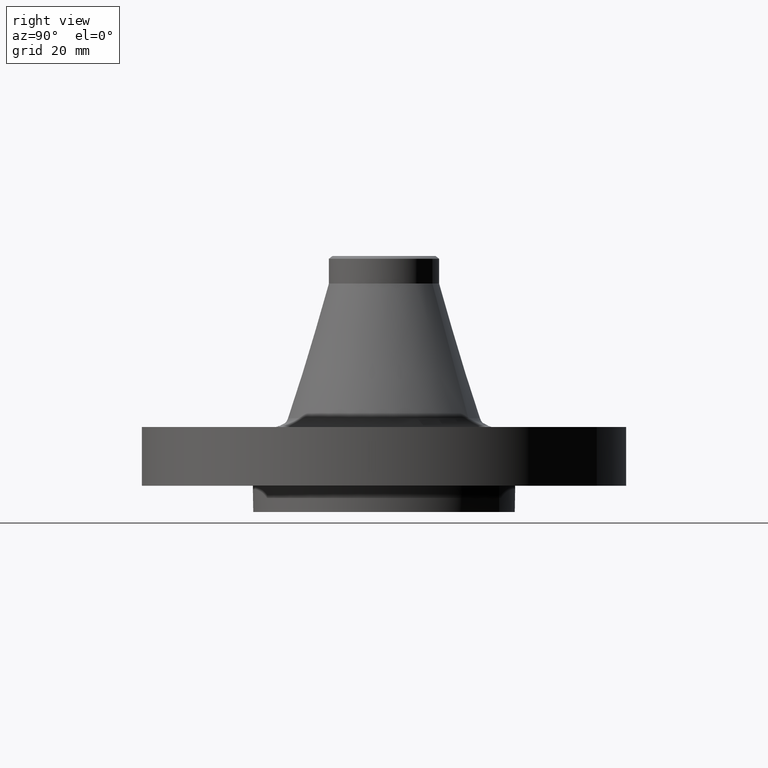
[diagram: clean part render]
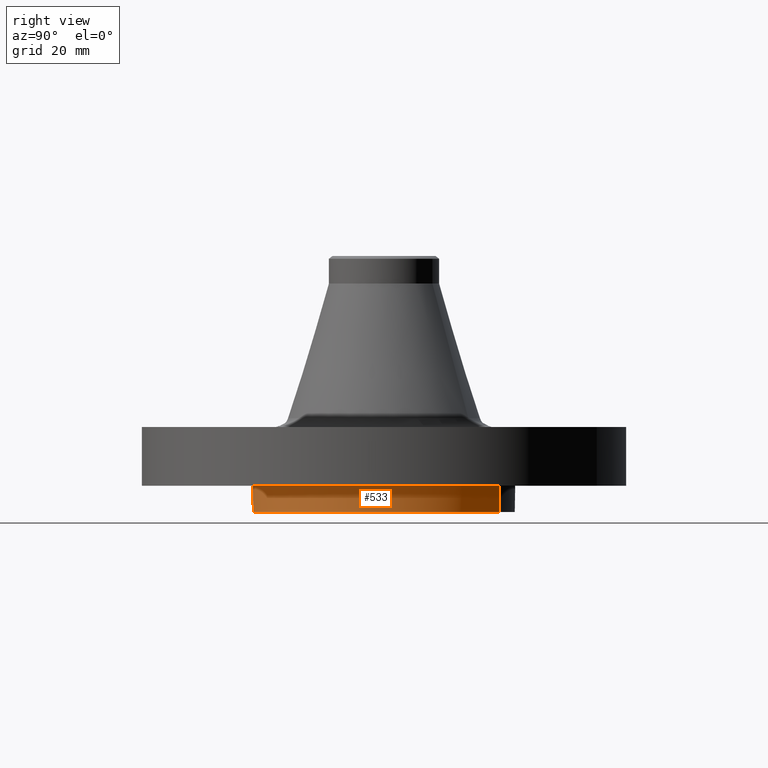
[diagram: same view with one face highlighted and labeled with its STEP entity id]
A machine part, right view. The second image highlights one B-rep face of the part: STEP entity #533.
In plain terms, the highlighted cylindrical surface (partial cylindrical patch) has radius 31.75 mm, axis along (0, 0, -1).
Its self-contained STEP definition (entity closure, byte-faithful):
#450=AXIS2_PLACEMENT_3D('Cylinder Axis2P3D',#447,#448,#449) ;
#503=AXIS2_PLACEMENT_3D('Circle Axis2P3D',#501,#502,$) ;
#508=AXIS2_PLACEMENT_3D('Circle Axis2P3D',#506,#507,$) ;
#515=AXIS2_PLACEMENT_3D('Circle Axis2P3D',#513,#514,$) ;
#522=AXIS2_PLACEMENT_3D('Circle Axis2P3D',#520,#521,$) ;
#447=CARTESIAN_POINT('Axis2P3D Location',(0.,0.,0.970000000004)) ;
#456=CARTESIAN_POINT('Vertex',(-0.599281923258,-1.09697820237,-0.250000000001)) ;
#458=CARTESIAN_POINT('Vertex',(0.599281923258,1.09697820237,-0.250000000001)) ;
#461=CARTESIAN_POINT('Line Origine',(-0.599281923258,-1.09697820237,-0.125)) ;
#465=CARTESIAN_POINT('Vertex',(-0.599281923258,-1.09697820237,1.39870617276E-016)) ;
#484=CARTESIAN_POINT('Vertex',(0.599281923258,1.09697820237,1.39870617276E-016)) ;
#487=CARTESIAN_POINT('Line Origine',(0.599281923258,1.09697820237,-0.125)) ;
#501=CARTESIAN_POINT('Axis2P3D Location',(0.,0.,-0.250000000001)) ;
#506=CARTESIAN_POINT('Axis2P3D Location',(0.,0.,1.39870617276E-016)) ;
#510=CARTESIAN_POINT('Vertex',(1.25000000001,-1.39870617276E-016,0.)) ;
#513=CARTESIAN_POINT('Axis2P3D Location',(0.,0.,1.39870617276E-016)) ;
#517=CARTESIAN_POINT('Vertex',(2.02112938519E-016,-1.25000000001,0.)) ;
#520=CARTESIAN_POINT('Axis2P3D Location',(0.,0.,1.39870617276E-016)) ;
#448=DIRECTION('Axis2P3D Direction',(0.,0.,-0.0393700787402)) ;
#449=DIRECTION('Axis2P3D XDirection',(0.0188750212049,0.0345504945626,0.)) ;
#462=DIRECTION('Vector Direction',(0.,0.,-0.0393700787402)) ;
#488=DIRECTION('Vector Direction',(0.,0.,-0.0393700787402)) ;
#502=DIRECTION('Axis2P3D Direction',(0.,0.,-0.0393700787402)) ;
#507=DIRECTION('Axis2P3D Direction',(0.,0.,-0.0393700787402)) ;
#514=DIRECTION('Axis2P3D Direction',(0.,0.,-0.0393700787402)) ;
#521=DIRECTION('Axis2P3D Direction',(0.,0.,-0.0393700787402)) ;
#463=VECTOR('Line Direction',#462,0.0393700787402) ;
#489=VECTOR('Line Direction',#488,0.0393700787402) ;
#526=ORIENTED_EDGE('',*,*,#505,.F.) ;
#527=ORIENTED_EDGE('',*,*,#491,.T.) ;
#528=ORIENTED_EDGE('',*,*,#512,.T.) ;
#529=ORIENTED_EDGE('',*,*,#519,.T.) ;
#530=ORIENTED_EDGE('',*,*,#524,.T.) ;
#531=ORIENTED_EDGE('',*,*,#467,.F.) ;
#533=ADVANCED_FACE('PartBody',(#532),#451,.T.) ;
#504=CIRCLE('generated circle',#503,1.25000000001) ;
#509=CIRCLE('generated circle',#508,1.25000000001) ;
#516=CIRCLE('generated circle',#515,1.25000000001) ;
#523=CIRCLE('generated circle',#522,1.25000000001) ;
#451=CYLINDRICAL_SURFACE('generated cylinder',#450,1.25000000001) ;
#467=EDGE_CURVE('',#457,#466,#464,.F.) ;
#491=EDGE_CURVE('',#459,#485,#490,.F.) ;
#505=EDGE_CURVE('',#459,#457,#504,.T.) ;
#512=EDGE_CURVE('',#485,#511,#509,.T.) ;
#519=EDGE_CURVE('',#511,#518,#516,.T.) ;
#524=EDGE_CURVE('',#518,#466,#523,.T.) ;
#525=EDGE_LOOP('',(#526,#527,#528,#529,#530,#531)) ;
#532=FACE_OUTER_BOUND('',#525,.T.) ;
#464=LINE('Line',#461,#463) ;
#490=LINE('Line',#487,#489) ;
#457=VERTEX_POINT('',#456) ;
#459=VERTEX_POINT('',#458) ;
#466=VERTEX_POINT('',#465) ;
#485=VERTEX_POINT('',#484) ;
#511=VERTEX_POINT('',#510) ;
#518=VERTEX_POINT('',#517) ;